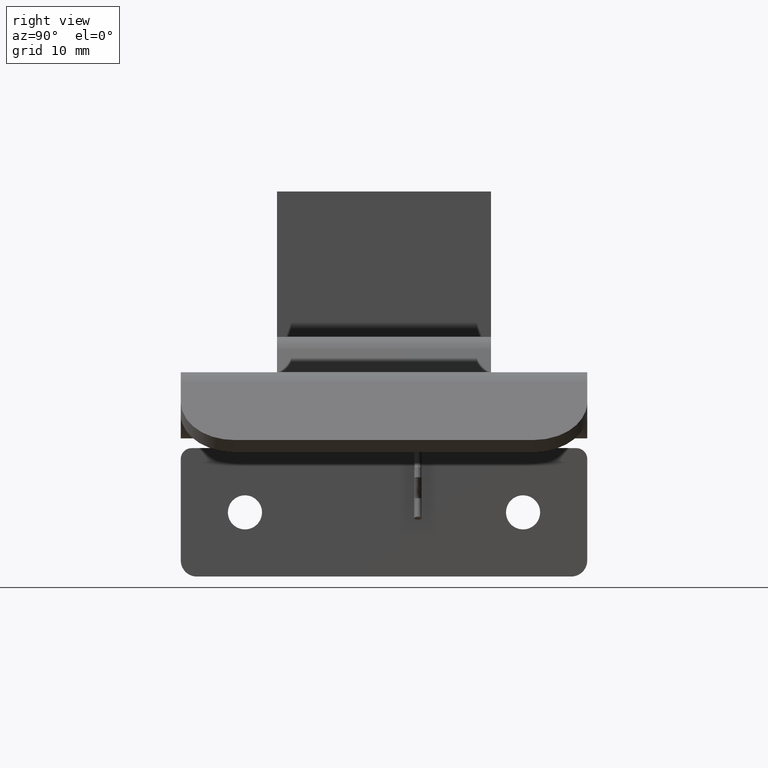
[diagram: clean part render]
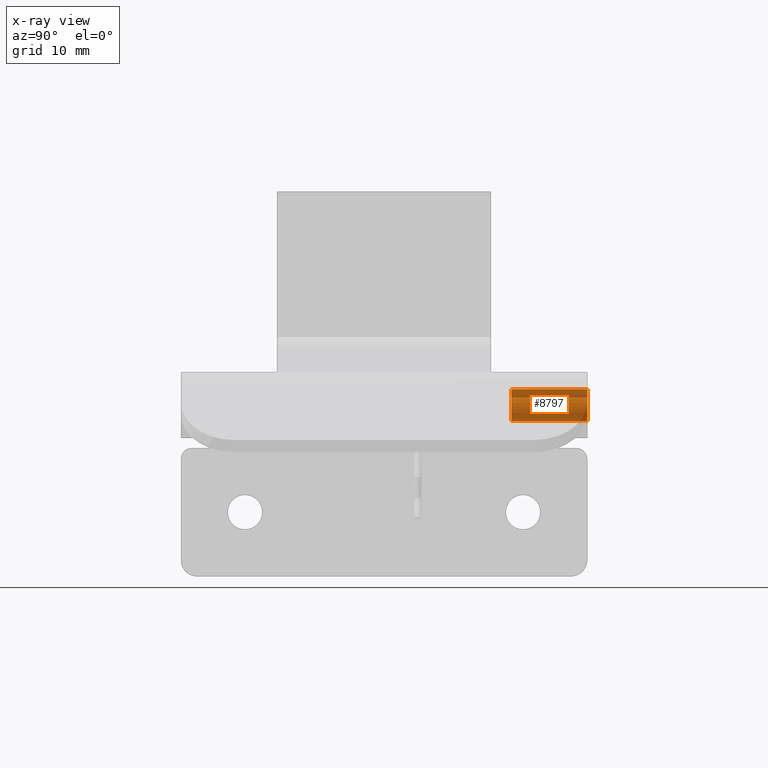
[diagram: x-ray — body ghosted, one internal face saturated and labeled with its STEP entity id]
A machine part, right view, then the same camera in x-ray: the body is ghosted and one INTERNAL B-rep face — a face not visible from any outside direction — is saturated and labeled: STEP entity #8797.
In plain terms, the highlighted face is a freeform B-spline surface patch.
Its self-contained STEP definition (entity closure, byte-faithful):
#8247=CARTESIAN_POINT('',(1.312698999999896,11.899993999999960,0.725799999999793));
#8248=VERTEX_POINT('',#8247);
#8254=CARTESIAN_POINT('',(-0.000027192366744,11.899993999999960,1.500000000000000));
#8255=VERTEX_POINT('',#8254);
#8256=CARTESIAN_POINT('',(-0.000027192366744,11.899993999999960,1.500000000000001));
#8257=CARTESIAN_POINT('',(-1.145504385960423,11.899993999999960,1.499989617256706));
#8258=CARTESIAN_POINT('',(-1.447090902798277,11.899993999999960,0.394926915862498));
#8259=CARTESIAN_POINT('',(-1.748677419636131,11.899993999999960,-0.710135785531709));
#8260=CARTESIAN_POINT('',(-0.762011677649305,11.899993999999960,-1.292036734783933));
#8261=CARTESIAN_POINT('',(0.224654064337521,11.899993999999960,-1.873937684036156));
#8262=CARTESIAN_POINT('',(1.045805647872060,11.899993999999960,-1.075296288909552));
#8263=CARTESIAN_POINT('',(1.866957231406601,11.899993999999960,-0.276654893782947));
#8264=CARTESIAN_POINT('',(1.312698999999897,11.899993999999960,0.725799999999794));
#8272=(BOUNDED_CURVE()B_SPLINE_CURVE(2,(#8256,#8257,#8258,#8259,#8260,#8261,#8262,#8263,#8264),.UNSPECIFIED.,.F.,.U.)B_SPLINE_CURVE_WITH_KNOTS((3,2,2,2,3),(0.0,0.250000000000000,0.500000000000000,0.750000000000000,1.0),.UNSPECIFIED.)CURVE()GEOMETRIC_REPRESENTATION_ITEM()RATIONAL_B_SPLINE_CURVE((1.0,0.794762025664100,1.0,0.794762025664100,1.0,0.794762025664100,1.0,0.794762025664100,1.0))REPRESENTATION_ITEM(''));
#8273=EDGE_CURVE('',#8255,#8248,#8272,.T.);
#8402=CARTESIAN_POINT('',(-0.000027192366744,19.0,1.500000000000000));
#8403=VERTEX_POINT('',#8402);
#8409=CARTESIAN_POINT('',(1.312698999999896,19.0,0.725799999999793));
#8410=VERTEX_POINT('',#8409);
#8411=CARTESIAN_POINT('',(-0.000027192366744,19.0,1.500000000000001));
#8412=CARTESIAN_POINT('',(-1.145504385960423,18.999999999999996,1.499989617256706));
#8413=CARTESIAN_POINT('',(-1.447090902798277,19.0,0.394926915862498));
#8414=CARTESIAN_POINT('',(-1.748677419636131,18.999999999999996,-0.710135785531709));
#8415=CARTESIAN_POINT('',(-0.762011677649305,19.0,-1.292036734783933));
#8416=CARTESIAN_POINT('',(0.224654064337521,18.999999999999996,-1.873937684036156));
#8417=CARTESIAN_POINT('',(1.045805647872060,19.0,-1.075296288909552));
#8418=CARTESIAN_POINT('',(1.866957231406601,18.999999999999996,-0.276654893782947));
#8419=CARTESIAN_POINT('',(1.312698999999897,19.0,0.725799999999794));
#8427=(BOUNDED_CURVE()B_SPLINE_CURVE(2,(#8411,#8412,#8413,#8414,#8415,#8416,#8417,#8418,#8419),.UNSPECIFIED.,.F.,.U.)B_SPLINE_CURVE_WITH_KNOTS((3,2,2,2,3),(0.0,0.250000000000000,0.500000000000000,0.750000000000000,1.0),.UNSPECIFIED.)CURVE()GEOMETRIC_REPRESENTATION_ITEM()RATIONAL_B_SPLINE_CURVE((1.0,0.794762025664100,1.0,0.794762025664100,1.0,0.794762025664100,1.0,0.794762025664100,1.0))REPRESENTATION_ITEM(''));
#8428=EDGE_CURVE('',#8403,#8410,#8427,.T.);
#8666=CARTESIAN_POINT('',(-0.000027192366744,19.0,1.500000000000000));
#8667=CARTESIAN_POINT('',(-0.000027192366744,11.899993999999960,1.500000000000000));
#8668=QUASI_UNIFORM_CURVE('',1,(#8666,#8667),.UNSPECIFIED.,.F.,.U.);
#8669=EDGE_CURVE('',#8403,#8255,#8668,.T.);
#8758=CARTESIAN_POINT('',(1.312698999999896,19.0,0.725799999999793));
#8759=CARTESIAN_POINT('',(1.312698999999896,11.899993999999960,0.725799999999793));
#8760=QUASI_UNIFORM_CURVE('',1,(#8758,#8759),.UNSPECIFIED.,.F.,.U.);
#8761=EDGE_CURVE('',#8410,#8248,#8760,.T.);
#8769=CARTESIAN_POINT('',(1.292423243892964,19.177500150000000,0.761319259306843));
#8770=CARTESIAN_POINT('',(1.292423243892964,11.718056346249959,0.761319259306843));
#8771=CARTESIAN_POINT('',(2.227002461125320,19.177500150000000,-0.825248524914212));
#8772=CARTESIAN_POINT('',(2.227002461125320,11.718056346249956,-0.825248524914212));
#8773=CARTESIAN_POINT('',(0.484223840392375,19.177500150000000,-1.419688030942308));
#8774=CARTESIAN_POINT('',(0.484223840392375,11.718056346249959,-1.419688030942308));
#8775=CARTESIAN_POINT('',(-1.258554780340570,19.177500150000000,-2.014127536970404));
#8776=CARTESIAN_POINT('',(-1.258554780340570,11.718056346249956,-2.014127536970404));
#8777=CARTESIAN_POINT('',(-1.488293073979339,19.177500150000000,-0.187147525134833));
#8778=CARTESIAN_POINT('',(-1.488293073979339,11.718056346249959,-0.187147525134833));
#8779=CARTESIAN_POINT('',(-1.718031367618107,19.177500150000000,1.639832486700737));
#8780=CARTESIAN_POINT('',(-1.718031367618107,11.718056346249956,1.639832486700737));
#8781=CARTESIAN_POINT('',(0.117661493137511,19.177500150000000,1.495377067343738));
#8782=CARTESIAN_POINT('',(0.117661493137511,11.718056346249959,1.495377067343738));
#8790=(BOUNDED_SURFACE()B_SPLINE_SURFACE(1,2,((#8769,#8771,#8773,#8775,#8777,#8779,#8781),(#8770,#8772,#8774,#8776,#8778,#8780,#8782)),.UNSPECIFIED.,.F.,.F.,.U.)B_SPLINE_SURFACE_WITH_KNOTS((2,2),(3,2,2,3),(0.0,7.459443803750048),(0.0,2.851148607216000,5.702297214432001,8.553445821648001),.UNSPECIFIED.)GEOMETRIC_REPRESENTATION_ITEM()RATIONAL_B_SPLINE_SURFACE(((1.0,0.631578351302498,1.0,0.631578351302498,1.0,0.631578351302498,1.0),(1.0,0.631578351302498,1.0,0.631578351302498,1.0,0.631578351302498,1.0)))REPRESENTATION_ITEM('')SURFACE());
#8791=ORIENTED_EDGE('',*,*,#8669,.T.);
#8792=ORIENTED_EDGE('',*,*,#8273,.T.);
#8793=ORIENTED_EDGE('',*,*,#8761,.F.);
#8794=ORIENTED_EDGE('',*,*,#8428,.F.);
#8795=EDGE_LOOP('',(#8791,#8792,#8793,#8794));
#8796=FACE_OUTER_BOUND('',#8795,.T.);
#8797=ADVANCED_FACE('',(#8796),#8790,.F.);